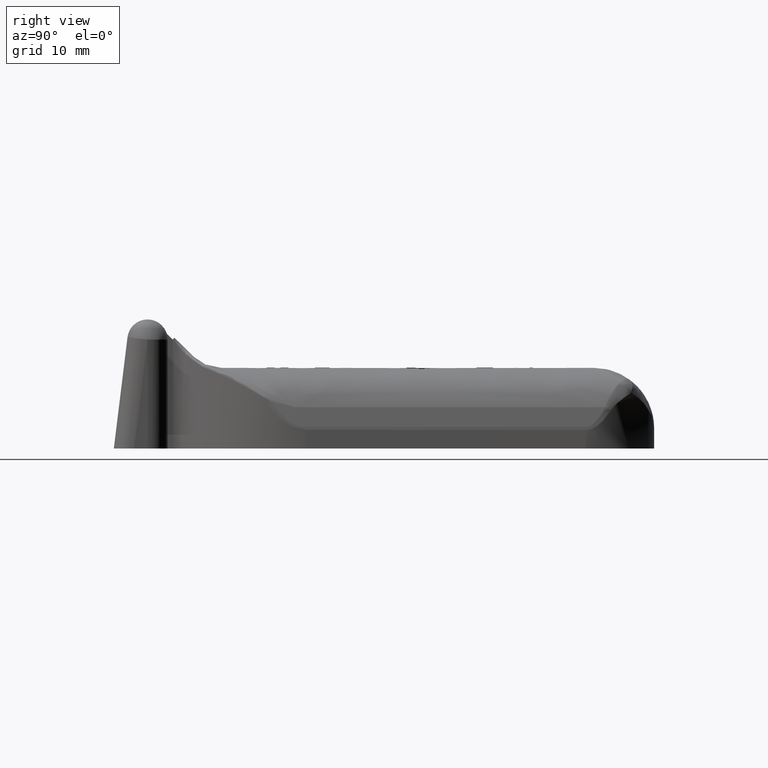
[diagram: clean part render]
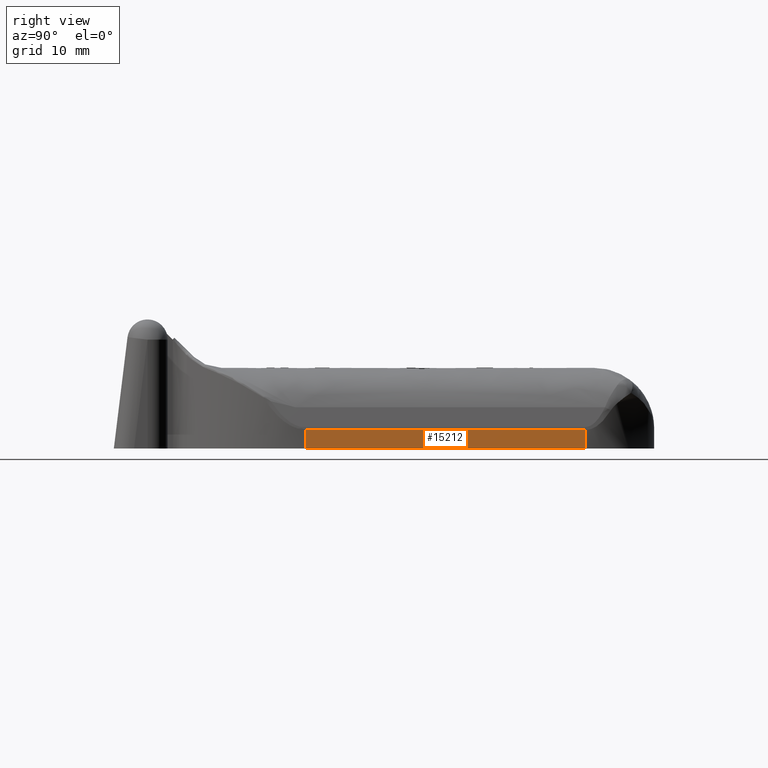
[diagram: same view with one face highlighted and labeled with its STEP entity id]
A machine part, right view. The second image highlights one B-rep face of the part: STEP entity #15212.
In plain terms, the highlighted face is a freeform B-spline surface patch.
Its self-contained STEP definition (entity closure, byte-faithful):
#12082=CARTESIAN_POINT('',(29.500000000000000,58.500000000000000,2.313027236240960));
#12083=VERTEX_POINT('',#12082);
#12135=CARTESIAN_POINT('',(29.500000000000000,23.756146999999999,2.313027236240940));
#12136=VERTEX_POINT('',#12135);
#12144=CARTESIAN_POINT('',(29.500000000000000,58.500000000000000,2.313027236240960));
#12145=CARTESIAN_POINT('',(29.500000000000000,23.756146999999999,2.313027236240940));
#12146=QUASI_UNIFORM_CURVE('',1,(#12144,#12145),.UNSPECIFIED.,.F.,.U.);
#12147=EDGE_CURVE('',#12083,#12136,#12146,.T.);
#12191=CARTESIAN_POINT('',(29.500000000000000,58.500000000000000,3.581974E-015));
#12192=VERTEX_POINT('',#12191);
#12193=CARTESIAN_POINT('',(29.500000000000000,58.500000000000000,3.581974E-015));
#12194=CARTESIAN_POINT('',(29.500000000000000,58.500000000000000,2.313027236240960));
#12195=QUASI_UNIFORM_CURVE('',1,(#12193,#12194),.UNSPECIFIED.,.F.,.U.);
#12196=EDGE_CURVE('',#12192,#12083,#12195,.T.);
#15108=CARTESIAN_POINT('',(29.500000000000000,23.756146999999999,0.0));
#15109=VERTEX_POINT('',#15108);
#15110=CARTESIAN_POINT('',(29.500000000000000,23.756146999999999,0.0));
#15111=CARTESIAN_POINT('',(29.500000000000000,23.756146999999999,2.313027236240940));
#15112=QUASI_UNIFORM_CURVE('',1,(#15110,#15111),.UNSPECIFIED.,.F.,.U.);
#15113=EDGE_CURVE('',#15109,#12136,#15112,.T.);
#15197=CARTESIAN_POINT('',(29.500000000000000,22.020691936140761,2.428562855355921));
#15198=CARTESIAN_POINT('',(29.500000000000000,60.235456306396252,2.428562855355921));
#15199=CARTESIAN_POINT('',(29.500000000000000,22.020691936140761,-0.115535763875487));
#15200=CARTESIAN_POINT('',(29.500000000000000,60.235456306396252,-0.115535763875487));
#15201=B_SPLINE_SURFACE_WITH_KNOTS('',1,1,((#15197,#15199),(#15198,#15200)),.UNSPECIFIED.,.F.,.F.,.U.,(2,2),(2,2),(0.0,38.214764370255487),(0.0,2.544098619231408),.UNSPECIFIED.);
#15202=ORIENTED_EDGE('',*,*,#12196,.T.);
#15203=ORIENTED_EDGE('',*,*,#12147,.T.);
#15204=ORIENTED_EDGE('',*,*,#15113,.F.);
#15205=CARTESIAN_POINT('',(29.500000000000000,23.756146999999999,0.0));
#15206=CARTESIAN_POINT('',(29.500000000000000,58.500000000000000,3.581974E-015));
#15207=QUASI_UNIFORM_CURVE('',1,(#15205,#15206),.UNSPECIFIED.,.F.,.U.);
#15208=EDGE_CURVE('',#15109,#12192,#15207,.T.);
#15209=ORIENTED_EDGE('',*,*,#15208,.T.);
#15210=EDGE_LOOP('',(#15202,#15203,#15204,#15209));
#15211=FACE_OUTER_BOUND('',#15210,.T.);
#15212=ADVANCED_FACE('',(#15211),#15201,.F.);